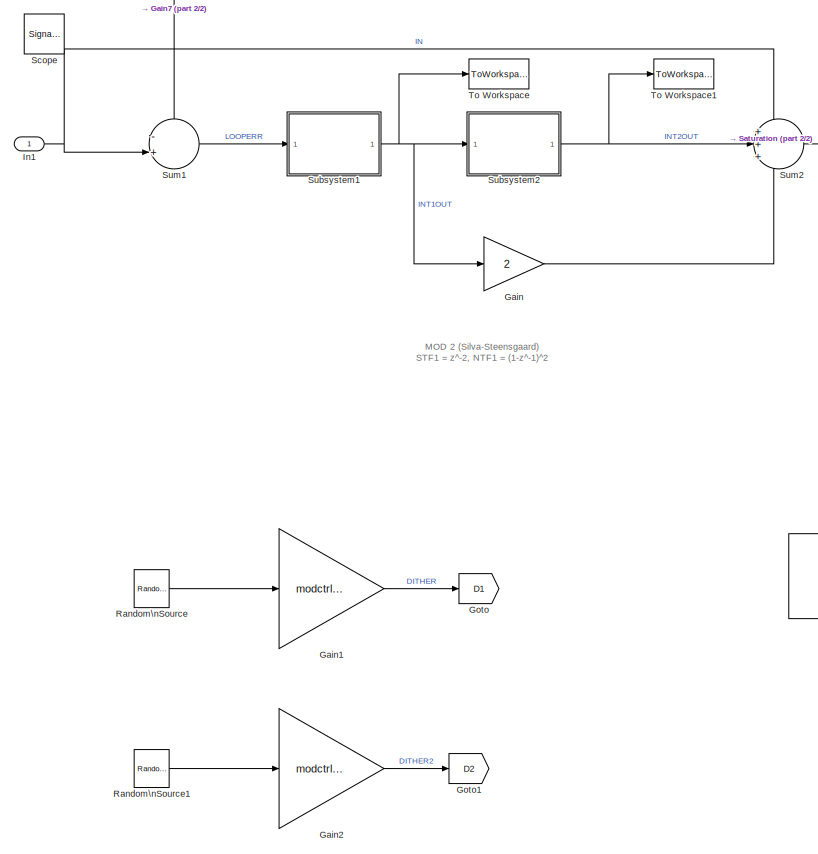
[diagram: root canvas - part 1/2, left side, full height]
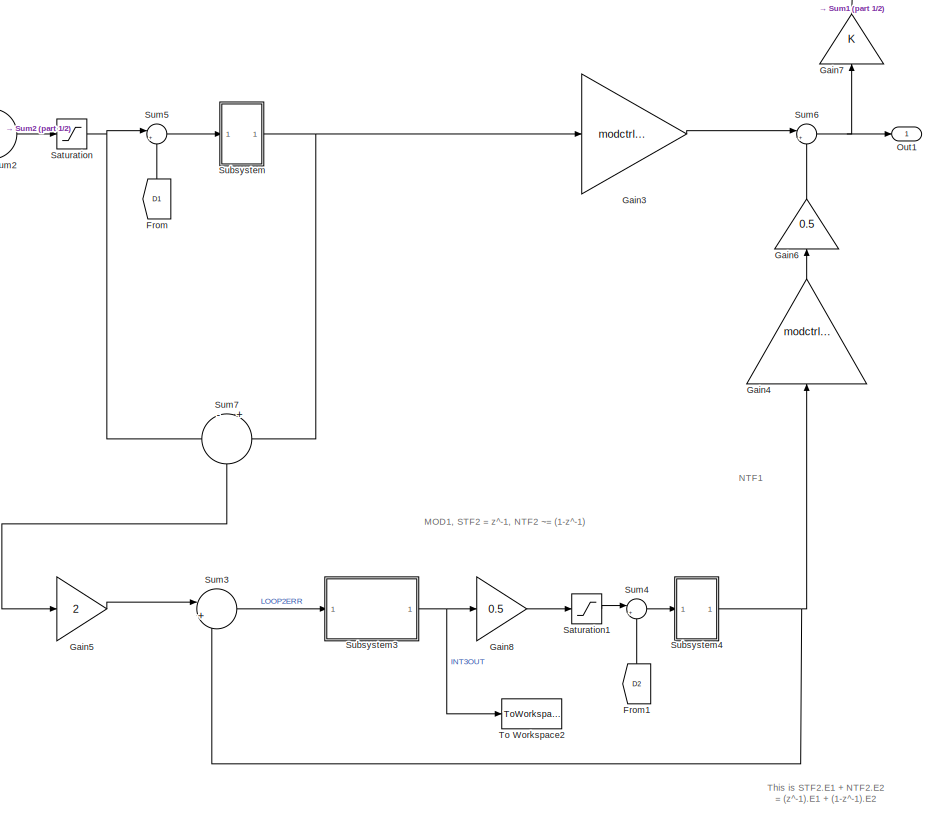
[diagram: root canvas - part 2/2, right side, full height]
MODEL mod3_2plus1SMASH
KIND model
BLOCK [From] From
  GotoTag = D1
  SID = 131
BLOCK [From] From1
  GotoTag = D2
  SID = 133
BLOCK [Gain] Gain
  Gain = 2
  OutDataTypeStr = Inherit: Inherit via internal rule
  ParamDataTypeStr = Inherit: Inherit via internal rule
  SID = 77
  SaturateOnIntegerOverflow = off
BLOCK [Gain] Gain1
  AttributesFormatString = Dither level adjust
  Gain = modctrl.dgain1
  OutDataTypeStr = Inherit: Inherit via internal rule
  ParamDataTypeStr = Inherit: Inherit via internal rule
  SID = 29
  SaturateOnIntegerOverflow = off
BLOCK [Gain] Gain2
  AttributesFormatString = Dither level adjust
  Gain = modctrl.dgain2
  OutDataTypeStr = Inherit: Inherit via internal rule
  ParamDataTypeStr = Inherit: Inherit via internal rule
  SID = 110
  SaturateOnIntegerOverflow = off
BLOCK [Gain] Gain3
  Gain = modctrl.mgain1
  OutDataTypeStr = Inherit: Inherit via internal rule
  ParamDataTypeStr = Inherit: Inherit via internal rule
  SID = 116
  SaturateOnIntegerOverflow = off
BLOCK [Gain] Gain4
  Gain = modctrl.mgain2
  OutDataTypeStr = Inherit: Inherit via internal rule
  ParamDataTypeStr = Inherit: Inherit via internal rule
  SID = 117
  SaturateOnIntegerOverflow = off
BLOCK [Gain] Gain5
  AttributesFormatString = Option to scale input\\nfor saturation control...
  Gain = 2
  OutDataTypeStr = Inherit: Inherit via internal rule
  ParamDataTypeStr = Inherit: Inherit via internal rule
  SID = 127
  SaturateOnIntegerOverflow = off
BLOCK [Gain] Gain6
  AttributesFormatString = Option to un-scale input\\npost saturation control...
  Gain = 0.5
  OutDataTypeStr = Inherit: Inherit via internal rule
  ParamDataTypeStr = Inherit: Inherit via internal rule
  SID = 134
  SaturateOnIntegerOverflow = off
BLOCK [Gain] Gain7
  AttributesFormatString = Option to un-scale input\\npost saturation control...
  OutDataTypeStr = Inherit: Inherit via internal rule
  ParamDataTypeStr = Inherit: Inherit via internal rule
  SID = 148
  SaturateOnIntegerOverflow = off
BLOCK [Gain] Gain8
  AttributesFormatString = Option to scale input\\nfor saturation control...
  Gain = 0.5
  OutDataTypeStr = Inherit: Inherit via internal rule
  ParamDataTypeStr = Inherit: Inherit via internal rule
  SID = 149
  SaturateOnIntegerOverflow = off
BLOCK [Goto] Goto
  GotoTag = D1
  SID = 129
BLOCK [Goto] Goto1
  GotoTag = D2
  SID = 130
BLOCK [Inport] In1
  IconDisplay = Port number
  SID = 73
BLOCK [Outport] Out1
  IconDisplay = Port number
  SID = 74
BLOCK [Reference] Random\nSource  REF=dspsrcs4/Random\nSource
  AttributesFormatString = Dither source
  CltLength = 12
  DataType = Double
  IsInherit = off
  MaxVal = 1
  MeanVal = 0
  MinVal = -1
  NormMethod = Ziggurat
  OutComplex = Real
  Ports = [0, 1]
  RepMode = Not repeatable
  SID = 25
  SampFrame = 1
  SampMode = Discrete
  SampTime = 1/Fs
  SourceBlock = dspsrcs4/Random\nSource
  SourceType = Random Source
  SrcType = Uniform
  UserData = DataTag0
  UserDataPersistent = on
  VarVal = 1
  rawSeed = 1
BLOCK [Reference] Random\nSource1  REF=dspsrcs4/Random\nSource
  AttributesFormatString = Dither source
  CltLength = 12
  DataType = Double
  IsInherit = off
  MaxVal = 1
  MeanVal = 0
  MinVal = -1
  NormMethod = Ziggurat
  OutComplex = Real
  Ports = [0, 1]
  RepMode = Not repeatable
  SID = 111
  SampFrame = 1
  SampMode = Discrete
  SampTime = 1/Fs
  SourceBlock = dspsrcs4/Random\nSource
  SourceType = Random Source
  SrcType = Uniform
  UserData = DataTag1
  UserDataPersistent = on
  VarVal = 1
  rawSeed = 1
BLOCK [Saturate] Saturation
  InputPortMap = u0
  LowerLimit = -(modctrl.qsatin1)
  Ports = [1, 1]
  SID = 135
  UpperLimit = modctrl.qsatin1
BLOCK [Saturate] Saturation1
  InputPortMap = u0
  LowerLimit = -(modctrl.qsatin2)
  Ports = [1, 1]
  SID = 136
  UpperLimit = modctrl.qsatin2
BLOCK [SignalViewerScope] Scope
  IOType = viewer
  MaxDataPoints = 7500
  NumInputPorts = 3
  Ports = []
  RefreshTime = 0.035000
  SID = 137
  ShowDataMarkers = off
  ShowLegends = off
  YMax = 5~5~15
  YMin = -5~-5~-15
  ZoomMode = yonly
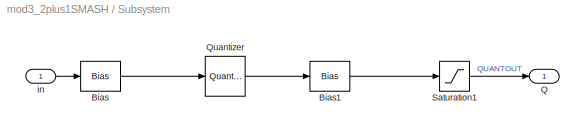
BLOCK [SubSystem] Subsystem
  AttributesFormatString = 2-bit quantiser
  FunctionWithSeparateData = off
  MaskHideContents = off
  MinAlgLoopOccurrences = off
  Opaque = off
  Ports = [1, 1]
  PropExecContextOutsideSubsystem = off
  RTWSystemCode = Auto
  RequestExecContextInheritance = off
  SID = 41
BLOCK [Bias] Subsystem/Bias
  AttributesFormatString = Need offset to give\\nMID-RISE quantiser
  Bias = 1/3
  SID = 15
  SaturateOnIntegerOverflow = off
BLOCK [Bias] Subsystem/Bias1
  Bias = -1/3
  SID = 35
  SaturateOnIntegerOverflow = off
BLOCK [Outport] Subsystem/Q
  IconDisplay = Port number
  SID = 43
BLOCK [Quantizer] Subsystem/Quantizer
  LinearizeAsGain = off
  QuantizationInterval = 2/3
  SID = 4
BLOCK [Saturate] Subsystem/Saturation1
  AttributesFormatString = Limit quantiser\\noutput to +/-1
  InputPortMap = u0
  LowerLimit = -1
  Ports = [1, 1]
  SID = 33
  UpperLimit = 1
BLOCK [Inport] Subsystem/in
  IconDisplay = Port number
  SID = 42
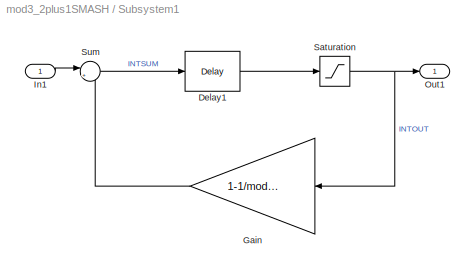
BLOCK [SubSystem] Subsystem1
  AttributesFormatString = Leaky delaying int
  FunctionWithSeparateData = off
  MaskHideContents = off
  MinAlgLoopOccurrences = off
  Opaque = off
  Ports = [1, 1]
  PropExecContextOutsideSubsystem = off
  RTWSystemCode = Auto
  RequestExecContextInheritance = off
  SID = 83
BLOCK [Reference] Subsystem1/Delay1  REF=dspsigops/Delay
  Ports = [1, 1]
  SID = 76
  SourceBlock = dspsigops/Delay
  SourceType = Delay
  delay = 1
  dif_ic_for_ch = off
  dif_ic_for_dly = off
  dly_unit = Samples
  ic = 0
  ic_detail = off
  reset_popup = None
BLOCK [Gain] Subsystem1/Gain
  AttributesFormatString = Integrator leakage
  Gain = 1-1/modctrl.igain1
  OutDataTypeStr = Inherit: Inherit via internal rule
  ParamDataTypeStr = Inherit: Inherit via internal rule
  SID = 32
  SaturateOnIntegerOverflow = off
BLOCK [Inport] Subsystem1/In1
  IconDisplay = Port number
  SID = 85
BLOCK [Outport] Subsystem1/Out1
  IconDisplay = Port number
  SID = 84
BLOCK [Saturate] Subsystem1/Saturation
  InputPortMap = u0
  LowerLimit = -(modctrl.isat1)
  Ports = [1, 1]
  SID = 72
  UpperLimit = modctrl.isat1
BLOCK [Sum] Subsystem1/Sum
  AttributesFormatString = Integrator summer
  IconShape = round
  InputSameDT = off
  Inputs = |++
  OutDataTypeStr = Inherit: Inherit via internal rule
  Ports = [2, 1]
  SID = 3
  SaturateOnIntegerOverflow = off
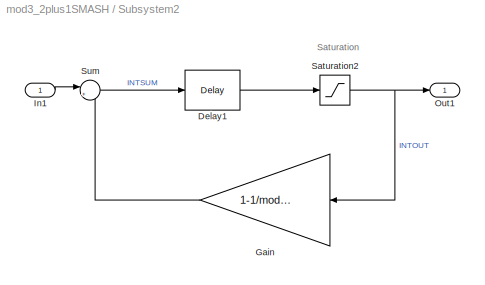
BLOCK [SubSystem] Subsystem2
  AttributesFormatString = Leaky delaying int
  FunctionWithSeparateData = off
  MaskHideContents = off
  MinAlgLoopOccurrences = off
  Opaque = off
  Ports = [1, 1]
  PropExecContextOutsideSubsystem = off
  RTWSystemCode = Auto
  RequestExecContextInheritance = off
  SID = 86
BLOCK [Reference] Subsystem2/Delay1  REF=dspsigops/Delay
  Ports = [1, 1]
  SID = 88
  SourceBlock = dspsigops/Delay
  SourceType = Delay
  delay = 1
  dif_ic_for_ch = off
  dif_ic_for_dly = off
  dly_unit = Samples
  ic = 0
  ic_detail = off
  reset_popup = None
BLOCK [Gain] Subsystem2/Gain
  AttributesFormatString = Integrator leakage
  Gain = 1-1/modctrl.igain2
  OutDataTypeStr = Inherit: Inherit via internal rule
  ParamDataTypeStr = Inherit: Inherit via internal rule
  SID = 89
  SaturateOnIntegerOverflow = off
BLOCK [Inport] Subsystem2/In1
  IconDisplay = Port number
  SID = 87
BLOCK [Outport] Subsystem2/Out1
  IconDisplay = Port number
  SID = 92
BLOCK [Saturate] Subsystem2/Saturation2
  InputPortMap = u0
  LowerLimit = -(modctrl.isat2)
  Ports = [1, 1]
  SID = 90
  UpperLimit = modctrl.isat2
BLOCK [Sum] Subsystem2/Sum
  AttributesFormatString = Integrator summer
  IconShape = round
  InputSameDT = off
  Inputs = |++
  OutDataTypeStr = Inherit: Inherit via internal rule
  Ports = [2, 1]
  SID = 91
  SaturateOnIntegerOverflow = off
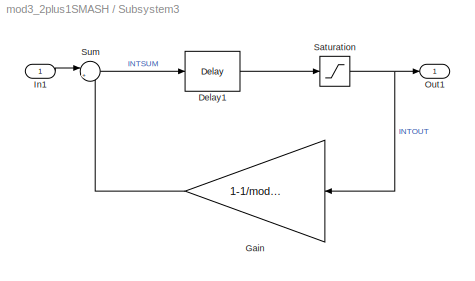
BLOCK [SubSystem] Subsystem3
  AttributesFormatString = Leaky delaying int
  FunctionWithSeparateData = off
  MaskHideContents = off
  MinAlgLoopOccurrences = off
  Opaque = off
  Ports = [1, 1]
  PropExecContextOutsideSubsystem = off
  RTWSystemCode = Auto
  RequestExecContextInheritance = off
  SID = 93
BLOCK [Reference] Subsystem3/Delay1  REF=dspsigops/Delay
  Ports = [1, 1]
  SID = 95
  SourceBlock = dspsigops/Delay
  SourceType = Delay
  delay = 1
  dif_ic_for_ch = off
  dif_ic_for_dly = off
  dly_unit = Samples
  ic = 0
  ic_detail = off
  reset_popup = None
BLOCK [Gain] Subsystem3/Gain
  AttributesFormatString = Integrator leakage
  Gain = 1-1/modctrl.igain3
  OutDataTypeStr = Inherit: Inherit via internal rule
  ParamDataTypeStr = Inherit: Inherit via internal rule
  SID = 96
  SaturateOnIntegerOverflow = off
BLOCK [Inport] Subsystem3/In1
  IconDisplay = Port number
  SID = 94
BLOCK [Outport] Subsystem3/Out1
  IconDisplay = Port number
  SID = 99
BLOCK [Saturate] Subsystem3/Saturation
  InputPortMap = u0
  LowerLimit = -(modctrl.isat3)
  Ports = [1, 1]
  SID = 97
  UpperLimit = modctrl.isat3
BLOCK [Sum] Subsystem3/Sum
  AttributesFormatString = Integrator summer
  IconShape = round
  InputSameDT = off
  Inputs = |++
  OutDataTypeStr = Inherit: Inherit via internal rule
  Ports = [2, 1]
  SID = 98
  SaturateOnIntegerOverflow = off
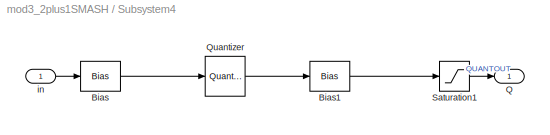
BLOCK [SubSystem] Subsystem4
  AttributesFormatString = 2-bit quantiser
  FunctionWithSeparateData = off
  MaskHideContents = off
  MinAlgLoopOccurrences = off
  Opaque = off
  Ports = [1, 1]
  PropExecContextOutsideSubsystem = off
  RTWSystemCode = Auto
  RequestExecContextInheritance = off
  SID = 139
BLOCK [Bias] Subsystem4/Bias
  AttributesFormatString = Need offset to give\\nMID-RISE quantiser
  Bias = 1/3
  SID = 141
  SaturateOnIntegerOverflow = off
BLOCK [Bias] Subsystem4/Bias1
  Bias = -1/3
  SID = 142
  SaturateOnIntegerOverflow = off
BLOCK [Outport] Subsystem4/Q
  IconDisplay = Port number
  SID = 145
BLOCK [Quantizer] Subsystem4/Quantizer
  LinearizeAsGain = off
  QuantizationInterval = 2/3
  SID = 143
BLOCK [Saturate] Subsystem4/Saturation1
  AttributesFormatString = Limit quantiser\\noutput to +/-1
  InputPortMap = u0
  LowerLimit = -1
  Ports = [1, 1]
  SID = 144
  UpperLimit = 1
BLOCK [Inport] Subsystem4/in
  IconDisplay = Port number
  SID = 140
BLOCK [Sum] Sum1
  AttributesFormatString = Modulator input\\nloop servo error (input - fbk)
  IconShape = round
  InputSameDT = off
  Inputs = -+|
  OutDataTypeStr = Inherit: Inherit via internal rule
  Ports = [2, 1]
  SID = 7
  SaturateOnIntegerOverflow = off
BLOCK [Sum] Sum2
  IconShape = round
  InputSameDT = off
  Inputs = +++
  OutDataTypeStr = Inherit: Inherit via internal rule
  Ports = [3, 1]
  SID = 30
  SaturateOnIntegerOverflow = off
BLOCK [Sum] Sum3
  AttributesFormatString = Modulator input\\nloop servo error (input - fbk)
  IconShape = round
  InputSameDT = off
  Inputs = |+-
  OutDataTypeStr = Inherit: Inherit via internal rule
  Ports = [2, 1]
  SID = 100
  SaturateOnIntegerOverflow = off
BLOCK [Sum] Sum4
  IconShape = round
  InputSameDT = off
  Inputs = |++
  OutDataTypeStr = Inherit: Inherit via internal rule
  Ports = [2, 1]
  SID = 109
  SaturateOnIntegerOverflow = off
BLOCK [Sum] Sum5
  IconShape = round
  InputSameDT = off
  Inputs = |++
  OutDataTypeStr = Inherit: Inherit via internal rule
  Ports = [2, 1]
  SID = 82
  SaturateOnIntegerOverflow = off
BLOCK [Sum] Sum6
  IconShape = round
  InputSameDT = off
  Inputs = |+-
  OutDataTypeStr = Inherit: Inherit via internal rule
  Ports = [2, 1]
  SID = 112
  SaturateOnIntegerOverflow = off
BLOCK [Sum] Sum7
  IconShape = round
  InputSameDT = off
  Inputs = -|+
  OutDataTypeStr = Inherit: Inherit via internal rule
  Ports = [2, 1]
  SID = 138
  SaturateOnIntegerOverflow = off
BLOCK [ToWorkspace] To Workspace
  MaxDataPoints = inf
  Ports = [1]
  SID = 150
  SampleTime = -1
  VariableName = INT1OUT
BLOCK [ToWorkspace] To Workspace1
  MaxDataPoints = inf
  Ports = [1]
  SID = 151
  SampleTime = -1
  VariableName = INT2OUT
BLOCK [ToWorkspace] To Workspace2
  MaxDataPoints = inf
  Ports = [1]
  SID = 152
  SampleTime = -1
  VariableName = INT3OUT
ANNOTATION (root): MOD 2 (Silva-Steensgaard)\nSTF1 = z^-2, NTF1 = (1-z^-1)^2
ANNOTATION (root): MOD1, STF2 = z^-1, NTF2 ~= (1-z^-1)
ANNOTATION (root): NTF1
ANNOTATION (root): This is STF2.E1 + NTF2.E2\n= (z^-1).E1 + (1-z^-1).E2
ANNOTATION Subsystem2: Saturation
LINE From1:1 -> Sum4:2
LINE From:1 -> Sum5:2
LINE Gain1:1 -> Goto:1
LINE Gain2:1 -> Goto1:1
LINE Gain3:1 -> Sum6:1
LINE Gain4:1 -> Gain6:1
LINE Gain5:1 -> Sum3:1
LINE Gain6:1 -> Sum6:2
LINE Gain7:1 -> Sum1:1
LINE Gain8:1 -> Saturation1:1
LINE Gain:1 -> Sum2:3
NET In1:1 -> Sum1:2, Sum2:1
LINE Random\nSource1:1 -> Gain2:1
LINE Random\nSource:1 -> Gain1:1
LINE Saturation1:1 -> Sum4:1
NET Saturation:1 -> Sum5:1, Sum7:1
LINE Subsystem/Bias1:1 -> Subsystem/Saturation1:1
LINE Subsystem/Bias:1 -> Subsystem/Quantizer:1
LINE Subsystem/Quantizer:1 -> Subsystem/Bias1:1
LINE Subsystem/Saturation1:1 -> Subsystem/Q:1
LINE Subsystem/in:1 -> Subsystem/Bias:1
LINE Subsystem1/Delay1:1 -> Subsystem1/Saturation:1
LINE Subsystem1/Gain:1 -> Subsystem1/Sum:2
LINE Subsystem1/In1:1 -> Subsystem1/Sum:1
NET Subsystem1/Saturation:1 -> Subsystem1/Gain:1, Subsystem1/Out1:1
LINE Subsystem1/Sum:1 -> Subsystem1/Delay1:1
NET Subsystem1:1 -> Gain:1, Subsystem2:1, To Workspace:1
LINE Subsystem2/Delay1:1 -> Subsystem2/Saturation2:1
LINE Subsystem2/Gain:1 -> Subsystem2/Sum:2
LINE Subsystem2/In1:1 -> Subsystem2/Sum:1
NET Subsystem2/Saturation2:1 -> Subsystem2/Gain:1, Subsystem2/Out1:1
LINE Subsystem2/Sum:1 -> Subsystem2/Delay1:1
NET Subsystem2:1 -> Sum2:2, To Workspace1:1
LINE Subsystem3/Delay1:1 -> Subsystem3/Saturation:1
LINE Subsystem3/Gain:1 -> Subsystem3/Sum:2
LINE Subsystem3/In1:1 -> Subsystem3/Sum:1
NET Subsystem3/Saturation:1 -> Subsystem3/Gain:1, Subsystem3/Out1:1
LINE Subsystem3/Sum:1 -> Subsystem3/Delay1:1
NET Subsystem3:1 -> Gain8:1, To Workspace2:1
LINE Subsystem4/Bias1:1 -> Subsystem4/Saturation1:1
LINE Subsystem4/Bias:1 -> Subsystem4/Quantizer:1
LINE Subsystem4/Quantizer:1 -> Subsystem4/Bias1:1
LINE Subsystem4/Saturation1:1 -> Subsystem4/Q:1
LINE Subsystem4/in:1 -> Subsystem4/Bias:1
NET Subsystem4:1 -> Gain4:1, Sum3:2
NET Subsystem:1 -> Gain3:1, Sum7:2
LINE Sum1:1 -> Subsystem1:1
LINE Sum2:1 -> Saturation:1
LINE Sum3:1 -> Subsystem3:1
LINE Sum4:1 -> Subsystem4:1
LINE Sum5:1 -> Subsystem:1
NET Sum6:1 -> Gain7:1, Out1:1
LINE Sum7:1 -> Gain5:1
note: NET lines group one-source signal fan-out (src -> all destinations, sorted); 1:1 wires keep LINE
